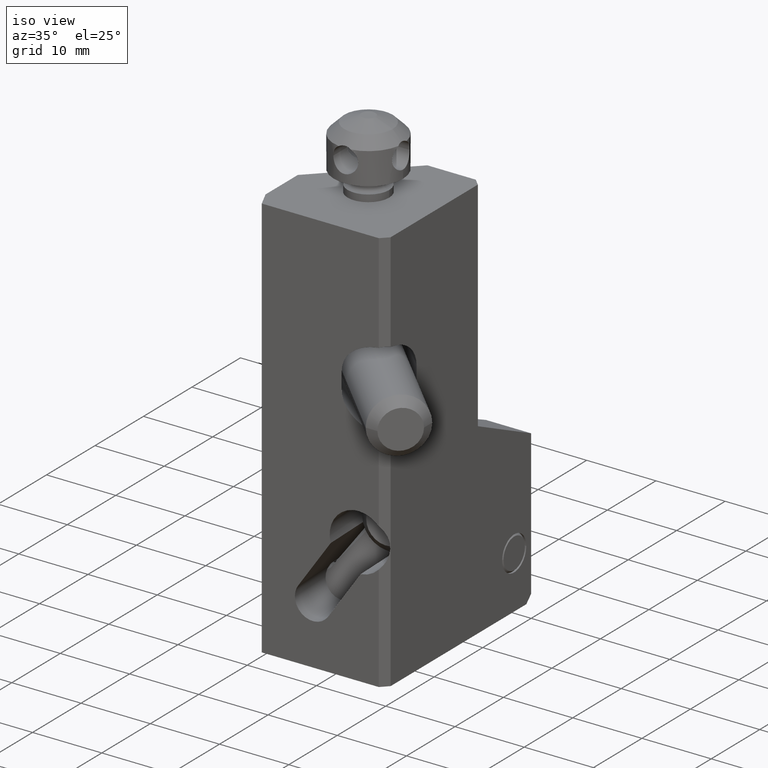
[diagram: clean part render]
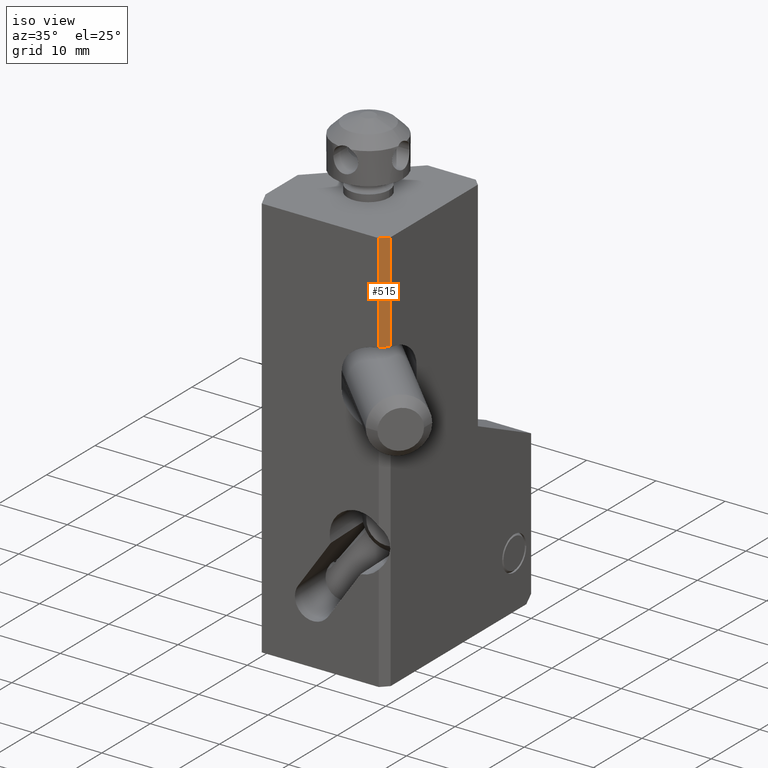
[diagram: same view with one face highlighted and labeled with its STEP entity id]
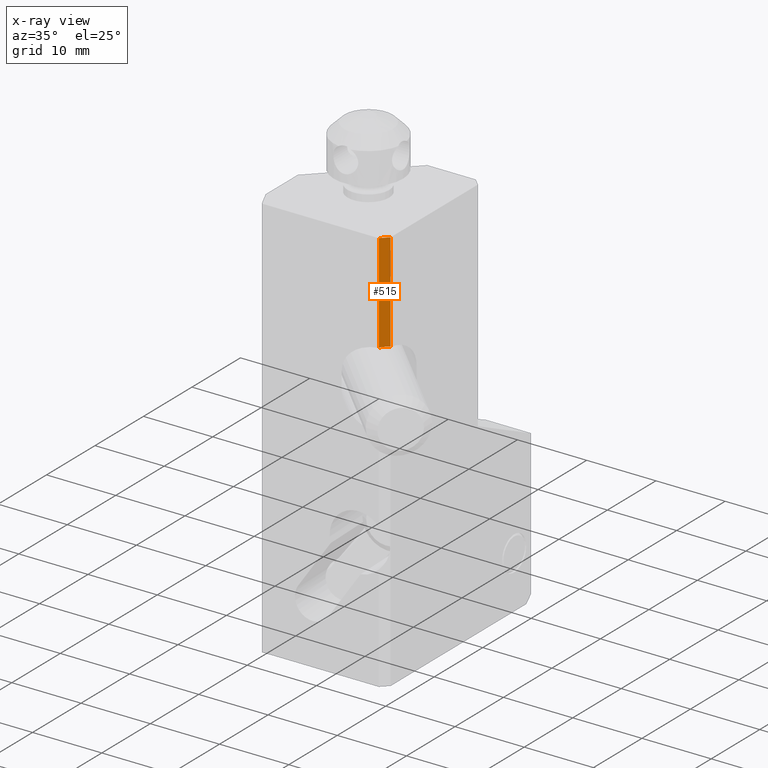
[diagram: x-ray of the same camera — body ghosted, the highlighted face saturated]
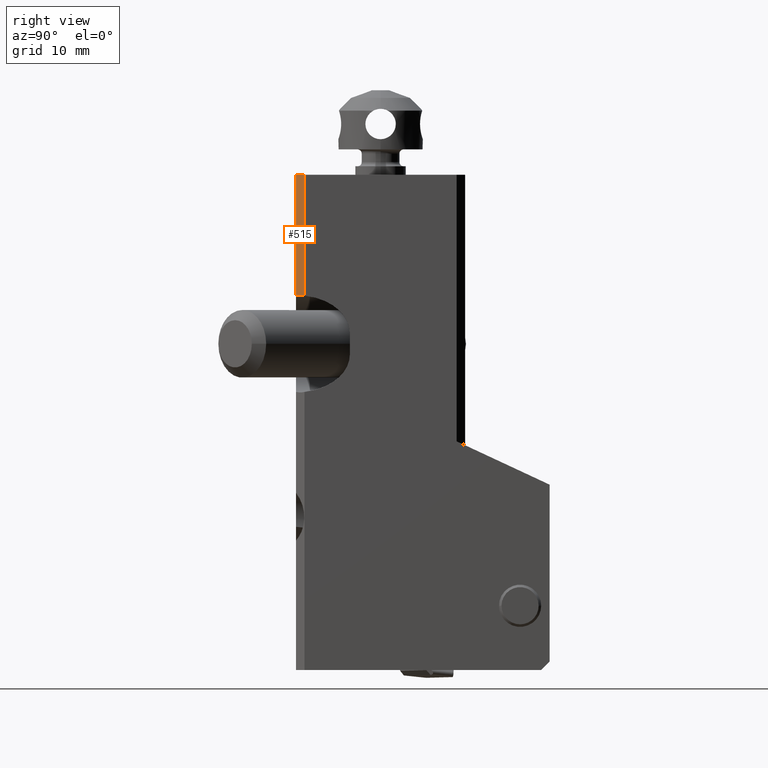
[diagram: same view with one face highlighted and labeled with its STEP entity id]
A machine part, iso view. The second image highlights one B-rep face of the part: STEP entity #515.
The next image is the same camera in x-ray: the body ghosted, the highlighted face saturated — about 0% of this face is hidden behind the body in this view.
A second angle (right view) of the same face is appended — the face is thin or edge-on in the first view.
In plain terms, the highlighted planar face has unit normal (0.7071, -0.7071, 0).
Its self-contained STEP definition (entity closure, byte-faithful):
#323=CIRCLE('',#4036,4.5);
#324=CIRCLE('',#4037,4.5);
#515=ADVANCED_FACE('',(#818),#728,.T.);
#728=PLANE('',#4068);
#818=FACE_OUTER_BOUND('',#1029,.T.);
#1029=EDGE_LOOP('',(#1407,#1408,#1409,#1410,#1411));
#1407=ORIENTED_EDGE('',*,*,#2842,.F.);
#1408=ORIENTED_EDGE('',*,*,#2779,.T.);
#1409=ORIENTED_EDGE('',*,*,#2741,.F.);
#1410=ORIENTED_EDGE('',*,*,#2764,.F.);
#1411=ORIENTED_EDGE('',*,*,#2763,.F.);
#2381=VERTEX_POINT('',#5607);
#2382=VERTEX_POINT('',#5609);
#2400=VERTEX_POINT('',#5651);
#2401=VERTEX_POINT('',#5653);
#2413=VERTEX_POINT('',#5743);
#2741=EDGE_CURVE('',#2381,#2382,#3301,.T.);
#2763=EDGE_CURVE('',#2400,#2401,#323,.T.);
#2764=EDGE_CURVE('',#2401,#2381,#324,.T.);
#2779=EDGE_CURVE('',#2413,#2382,#3322,.T.);
#2842=EDGE_CURVE('',#2413,#2400,#3375,.T.);
#3301=LINE('',#5608,#3580);
#3322=LINE('',#5742,#3601);
#3375=LINE('',#5864,#3654);
#3580=VECTOR('',#4488,1.);
#3601=VECTOR('',#4545,1.);
#3654=VECTOR('',#4644,1.);
#4036=AXIS2_PLACEMENT_3D('',#5652,#4525,#4526);
#4037=AXIS2_PLACEMENT_3D('',#5654,#4527,#4528);
#4068=AXIS2_PLACEMENT_3D('',#5870,#4651,#4652);
#4488=DIRECTION('',(0.,0.,1.));
#4525=DIRECTION('',(0.707106781186548,-0.707106781186548,0.));
#4526=DIRECTION('',(0.111111111111004,0.111111111111004,0.987577157479534));
#4527=DIRECTION('',(0.707106781186548,-0.707106781186548,0.));
#4528=DIRECTION('',(0.,0.,1.));
#4545=DIRECTION('',(-0.707106781186547,-0.707106781186547,0.));
#4644=DIRECTION('',(-1.431441551637E-14,-1.514091877064E-14,-1.));
#4651=DIRECTION('',(0.707106781186547,-0.707106781186547,0.));
#4652=DIRECTION('',(-0.707106781186547,-0.707106781186547,0.));
#5607=CARTESIAN_POINT('',(-1.,1.0066022089935E-14,-14.3059027913422));
#5608=CARTESIAN_POINT('',(-1.,2.013204417987E-14,-14.30590279134));
#5609=CARTESIAN_POINT('',(-1.,0.,0.));
#5651=CARTESIAN_POINT('',(-1.06216868748322E-13,0.999999999999896,-14.3059027913422));
#5652=CARTESIAN_POINT('',(-0.5,0.5,-18.75));
#5653=CARTESIAN_POINT('',(-0.5,0.5,-14.25));
#5654=CARTESIAN_POINT('',(-0.5,0.5,-18.75));
#5742=CARTESIAN_POINT('',(0.,1.,0.));
#5743=CARTESIAN_POINT('',(0.,1.,0.));
#5864=CARTESIAN_POINT('',(0.,1.,0.));
#5870=CARTESIAN_POINT('',(-0.5,0.5,-7.152951395671));